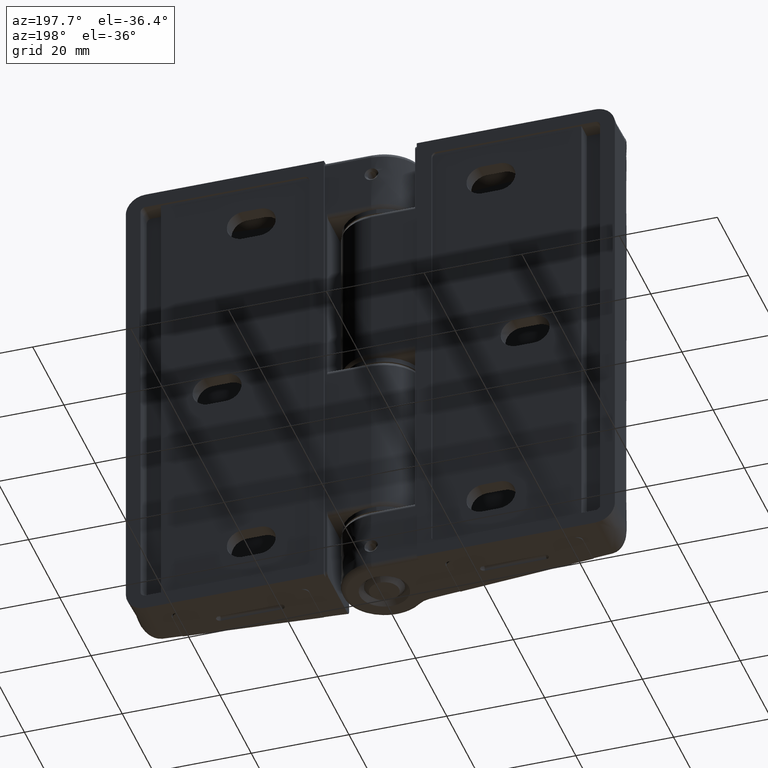
[diagram: clean part render]
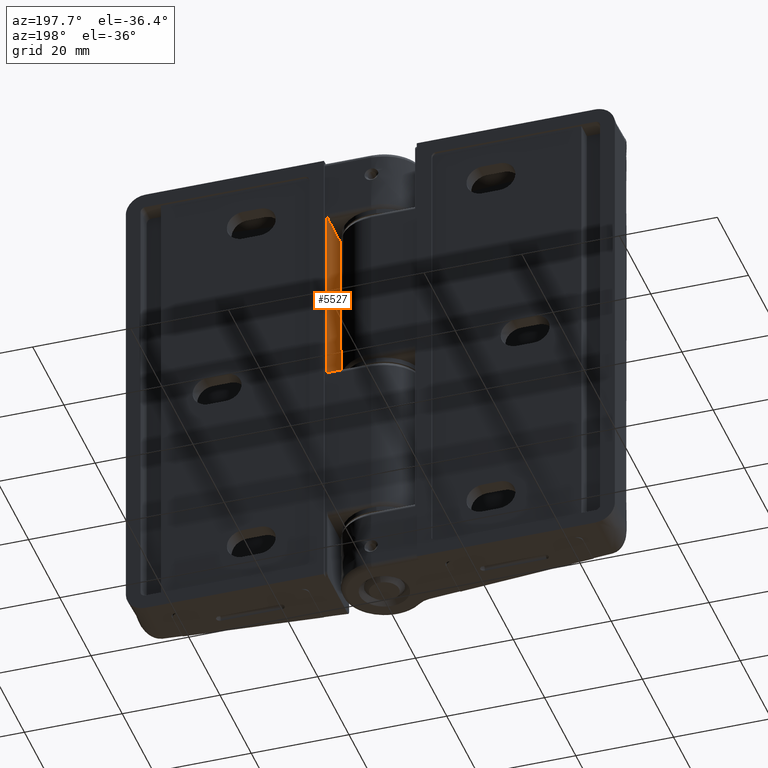
[diagram: same view with one face highlighted and labeled with its STEP entity id]
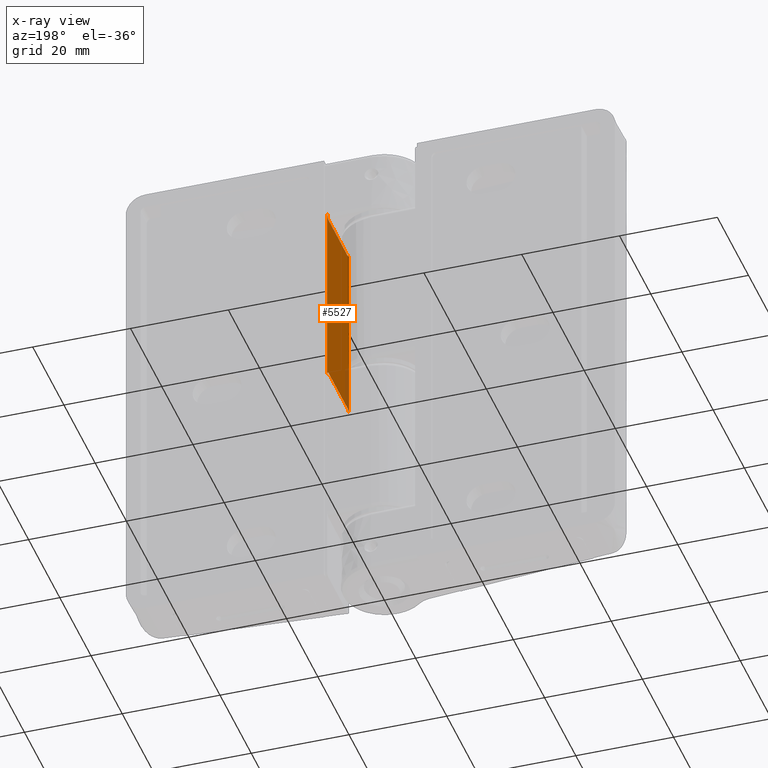
[diagram: x-ray of the same camera — body ghosted, the highlighted face saturated]
A machine part, auxiliary view. The second image highlights one B-rep face of the part: STEP entity #5527.
The next image is the same camera in x-ray: the body ghosted, the highlighted face saturated — about 9% of this face is hidden behind the body in this view.
In plain terms, the highlighted face is a freeform B-spline surface patch.
Its self-contained STEP definition (entity closure, byte-faithful):
#4894=CARTESIAN_POINT('',(-9.0,7.500000000000000,50.500000000000000));
#4895=VERTEX_POINT('',#4894);
#4901=CARTESIAN_POINT('',(-9.0,8.500000000000000,51.500000000000000));
#4902=VERTEX_POINT('',#4901);
#4903=CARTESIAN_POINT('',(-9.0,8.500000000000000,51.500000000000000));
#4904=CARTESIAN_POINT('',(-9.000000000000002,8.500000000000002,50.499999999999993));
#4905=CARTESIAN_POINT('',(-9.0,7.500000000000000,50.499999999999993));
#4913=(BOUNDED_CURVE()B_SPLINE_CURVE(2,(#4903,#4904,#4905),.UNSPECIFIED.,.F.,.U.)CURVE()GEOMETRIC_REPRESENTATION_ITEM()QUASI_UNIFORM_CURVE()RATIONAL_B_SPLINE_CURVE((1.0,0.707106781186548,1.0))REPRESENTATION_ITEM(''));
#4914=EDGE_CURVE('',#4902,#4895,#4913,.T.);
#5086=CARTESIAN_POINT('',(-9.0,-4.583217351706750,50.500000000000000));
#5087=VERTEX_POINT('',#5086);
#5088=CARTESIAN_POINT('',(-9.0,-5.587037191302819,51.500000000000000));
#5089=VERTEX_POINT('',#5088);
#5090=CARTESIAN_POINT('',(-9.0,-4.583217351706750,50.499999999999993));
#5091=CARTESIAN_POINT('',(-9.0,-4.999013143446657,50.499999999999986));
#5092=CARTESIAN_POINT('',(-9.0,-5.293025167374758,50.792893218813440));
#5093=CARTESIAN_POINT('',(-9.0,-5.587037191302872,51.085786437626894));
#5094=CARTESIAN_POINT('',(-9.0,-5.587037191302872,51.500000000000000));
#5102=(BOUNDED_CURVE()B_SPLINE_CURVE(2,(#5090,#5091,#5092,#5093,#5094),.UNSPECIFIED.,.F.,.U.)B_SPLINE_CURVE_WITH_KNOTS((3,2,3),(0.0,0.500000000000000,1.0),.UNSPECIFIED.)CURVE()GEOMETRIC_REPRESENTATION_ITEM()RATIONAL_B_SPLINE_CURVE((1.0,0.923879532511359,1.0,0.923879532511359,1.0))REPRESENTATION_ITEM(''));
#5103=EDGE_CURVE('',#5087,#5089,#5102,.T.);
#5133=CARTESIAN_POINT('',(-9.0,-5.587037191302819,12.499999999999719));
#5134=VERTEX_POINT('',#5133);
#5135=CARTESIAN_POINT('',(-9.0,-4.583217351706750,13.500000000000000));
#5136=VERTEX_POINT('',#5135);
#5137=CARTESIAN_POINT('',(-9.0,-5.587037191302822,12.499999999999719));
#5138=CARTESIAN_POINT('',(-9.0,-5.587037191302939,12.914213562372892));
#5139=CARTESIAN_POINT('',(-9.0,-5.293025167374825,13.207106781186440));
#5140=CARTESIAN_POINT('',(-9.0,-4.999013143446704,13.500000000000000));
#5141=CARTESIAN_POINT('',(-9.0,-4.583217351706750,13.500000000000000));
#5149=(BOUNDED_CURVE()B_SPLINE_CURVE(2,(#5137,#5138,#5139,#5140,#5141),.UNSPECIFIED.,.F.,.U.)B_SPLINE_CURVE_WITH_KNOTS((3,2,3),(0.0,0.500000000000000,1.0),.UNSPECIFIED.)CURVE()GEOMETRIC_REPRESENTATION_ITEM()RATIONAL_B_SPLINE_CURVE((1.0,0.923879532511261,1.0,0.923879532511261,1.0))REPRESENTATION_ITEM(''));
#5150=EDGE_CURVE('',#5134,#5136,#5149,.T.);
#5344=CARTESIAN_POINT('',(-9.0,7.500000000000000,13.500000000000000));
#5345=VERTEX_POINT('',#5344);
#5346=CARTESIAN_POINT('',(-9.0,8.500000000000000,12.500000000000000));
#5347=VERTEX_POINT('',#5346);
#5348=CARTESIAN_POINT('',(-9.0,7.500000000000000,13.500000000000000));
#5349=CARTESIAN_POINT('',(-9.000000000000002,8.500000000000002,13.500000000000002));
#5350=CARTESIAN_POINT('',(-9.0,8.500000000000000,12.500000000000000));
#5358=(BOUNDED_CURVE()B_SPLINE_CURVE(2,(#5348,#5349,#5350),.UNSPECIFIED.,.F.,.U.)CURVE()GEOMETRIC_REPRESENTATION_ITEM()QUASI_UNIFORM_CURVE()RATIONAL_B_SPLINE_CURVE((1.0,0.707106781186548,1.0))REPRESENTATION_ITEM(''));
#5359=EDGE_CURVE('',#5345,#5347,#5358,.T.);
#5463=CARTESIAN_POINT('',(-9.0,-4.583217351706750,50.500000000000000));
#5464=CARTESIAN_POINT('',(-9.0,7.500000000000000,50.500000000000000));
#5465=QUASI_UNIFORM_CURVE('',1,(#5463,#5464),.UNSPECIFIED.,.F.,.U.);
#5466=EDGE_CURVE('',#5087,#4895,#5465,.T.);
#5486=CARTESIAN_POINT('',(-9.0,-4.583217351706750,13.500000000000000));
#5487=CARTESIAN_POINT('',(-9.0,7.500000000000000,13.500000000000000));
#5488=QUASI_UNIFORM_CURVE('',1,(#5486,#5487),.UNSPECIFIED.,.F.,.U.);
#5489=EDGE_CURVE('',#5136,#5345,#5488,.T.);
#5504=CARTESIAN_POINT('',(-9.0,-6.290684671704984,53.448049924410448));
#5505=CARTESIAN_POINT('',(-9.0,-6.290684671704984,10.551949029527760));
#5506=CARTESIAN_POINT('',(-9.0,9.203647858245946,53.448049924410448));
#5507=CARTESIAN_POINT('',(-9.0,9.203647858245946,10.551949029527760));
#5508=B_SPLINE_SURFACE_WITH_KNOTS('',1,1,((#5504,#5506),(#5505,#5507)),.UNSPECIFIED.,.F.,.F.,.U.,(2,2),(2,2),(0.0,42.896100894882693),(0.0,15.494332529950929),.UNSPECIFIED.);
#5509=CARTESIAN_POINT('',(-9.0,-5.587037191302819,51.500000000000000));
#5510=CARTESIAN_POINT('',(-9.0,-5.587037191302819,12.499999999999719));
#5511=QUASI_UNIFORM_CURVE('',1,(#5509,#5510),.UNSPECIFIED.,.F.,.U.);
#5512=EDGE_CURVE('',#5089,#5134,#5511,.T.);
#5513=ORIENTED_EDGE('',*,*,#5512,.T.);
#5514=ORIENTED_EDGE('',*,*,#5150,.T.);
#5515=ORIENTED_EDGE('',*,*,#5489,.T.);
#5516=ORIENTED_EDGE('',*,*,#5359,.T.);
#5517=CARTESIAN_POINT('',(-9.0,8.500000000000000,51.500000000000000));
#5518=CARTESIAN_POINT('',(-9.0,8.500000000000000,12.500000000000000));
#5519=QUASI_UNIFORM_CURVE('',1,(#5517,#5518),.UNSPECIFIED.,.F.,.U.);
#5520=EDGE_CURVE('',#4902,#5347,#5519,.T.);
#5521=ORIENTED_EDGE('',*,*,#5520,.F.);
#5522=ORIENTED_EDGE('',*,*,#4914,.T.);
#5523=ORIENTED_EDGE('',*,*,#5466,.F.);
#5524=ORIENTED_EDGE('',*,*,#5103,.T.);
#5525=EDGE_LOOP('',(#5513,#5514,#5515,#5516,#5521,#5522,#5523,#5524));
#5526=FACE_OUTER_BOUND('',#5525,.T.);
#5527=ADVANCED_FACE('',(#5526),#5508,.T.);